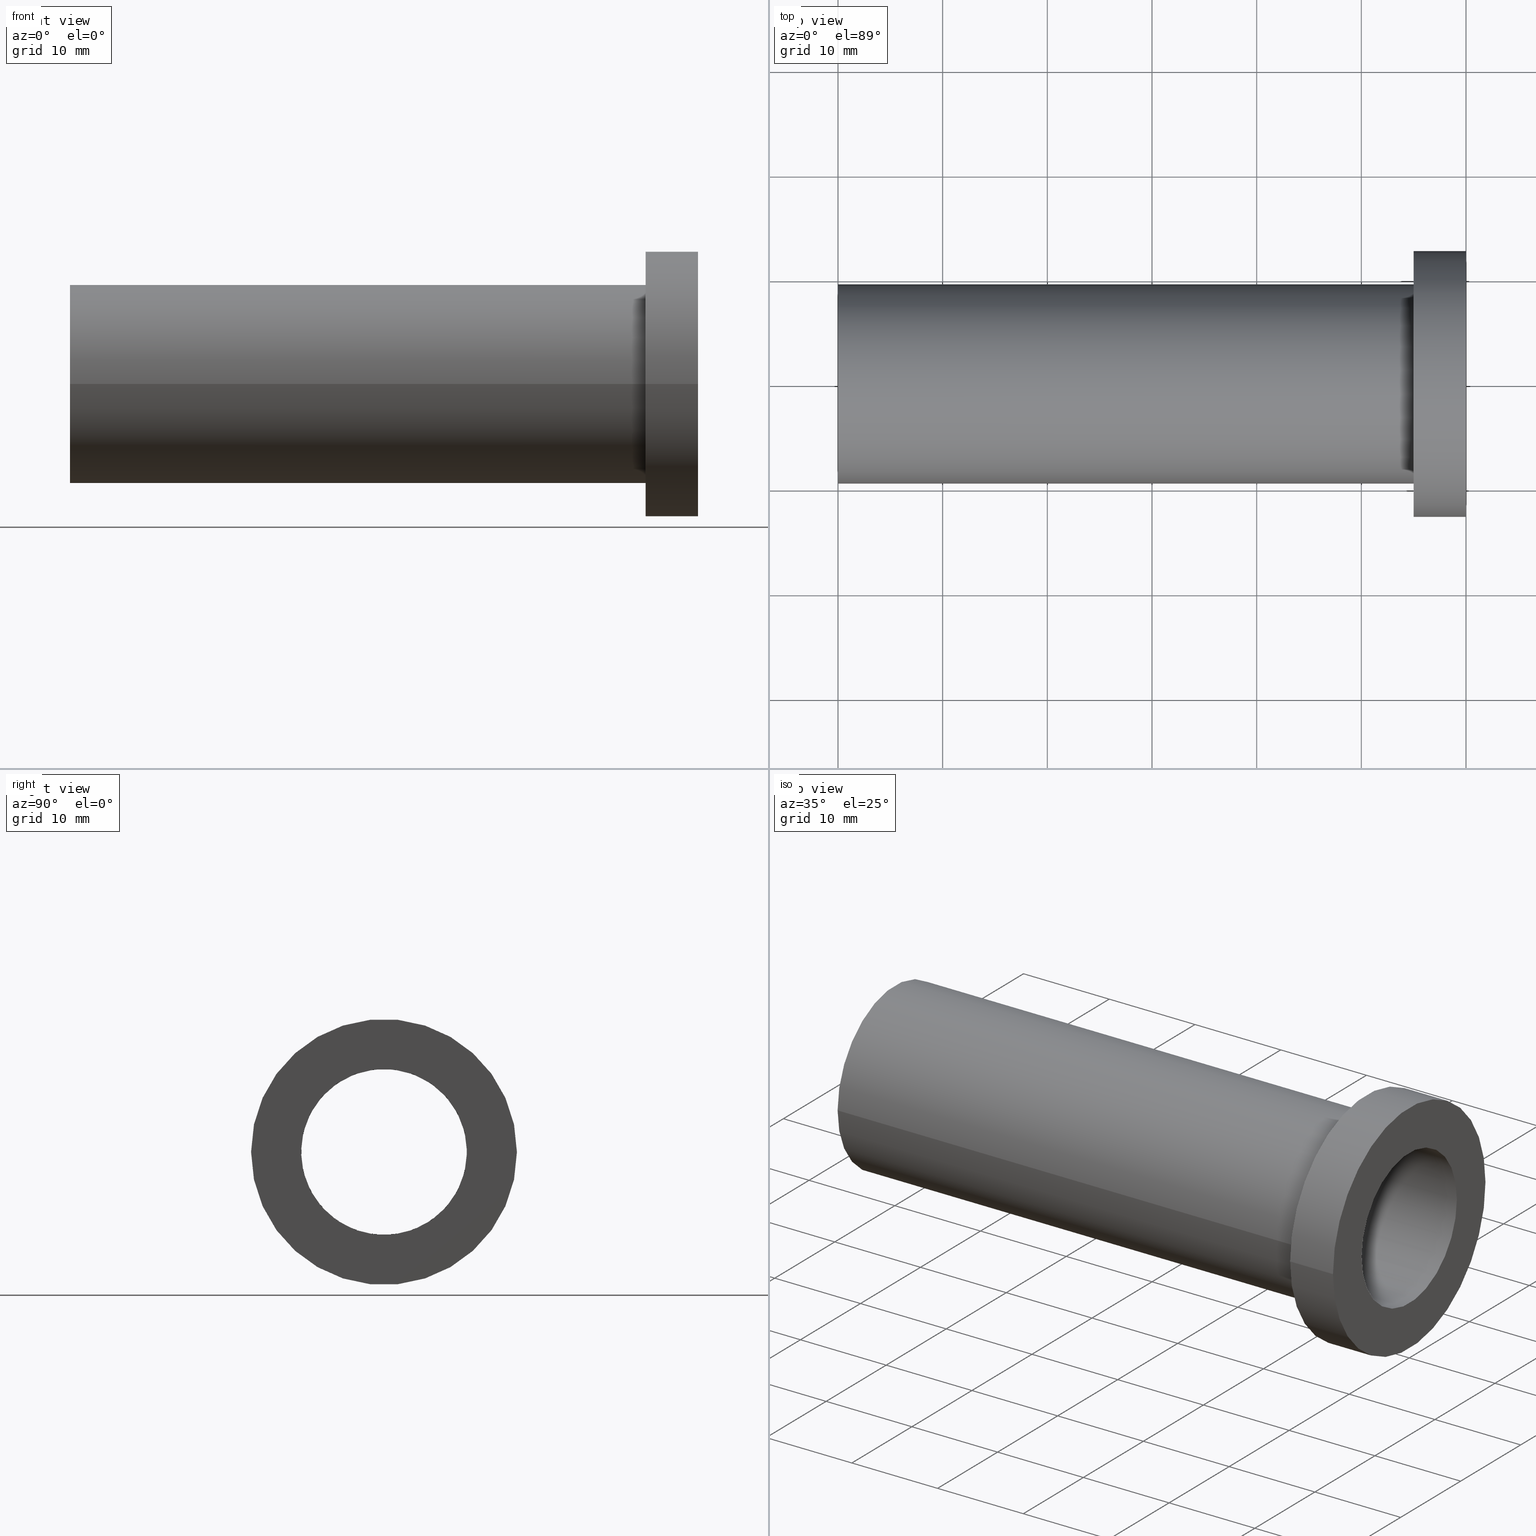
[diagram: canonical four-view strip — front | top / right | iso, engineering-drawing reading convention]
A machine part, canonical four-view strip (front | top / right | iso — engineering-drawing reading convention). The complete STEP part file that produces these views, byte-faithful:
ISO-10303-21;
HEADER;
/* Generated by software containing ST-Developer
 * from STEP Tools, Inc. (www.steptools.com) 
 */

FILE_DESCRIPTION(
/* description */ (''),
/* implementation_level */ '2;1');

FILE_NAME(
/* name */ 
'Z:\\\X2\C5F0AD6CC18C\X0\\\DRAWING_3D\\1. \X2\C778BCA4D130\X0\\\4. LAY
-OUT\\ACCESSORY&OTEHERS\\POWER MILLING CHUCK\\CK-COLLET\\INCH\\CK19.05
\\CK19.05-15.875\\CK19.05-15.875.stp',
/* time_stamp */ '2023-06-13T11:20:33+09:00',
/* author */ ('eos'),
/* organization */ (''),
/* preprocessor_version */ 'ST-DEVELOPER v18.1',
/* originating_system */ 'Autodesk Inventor 2022',
/* authorisation */ '');

FILE_SCHEMA (('AUTOMOTIVE_DESIGN { 1 0 10303 214 3 1 1 }'));
ENDSEC;

DATA;
#10=MECHANICAL_DESIGN_GEOMETRIC_PRESENTATION_REPRESENTATION('',(#13),#269);
#11=SHAPE_REPRESENTATION_RELATIONSHIP('SRR','None',#276,#12);
#12=ADVANCED_BREP_SHAPE_REPRESENTATION('',(#14),#268);
#13=STYLED_ITEM('',(#285),#14);
#14=MANIFOLD_SOLID_BREP('\X2\C194B9ACB4DC\X0\1',#140);
#15=FACE_BOUND('',#37,.T.);
#16=FACE_BOUND('',#40,.T.);
#17=FACE_BOUND('',#43,.T.);
#18=FACE_BOUND('',#46,.T.);
#19=FACE_BOUND('',#48,.T.);
#20=PLANE('',#166);
#21=PLANE('',#171);
#22=PLANE('',#175);
#23=PLANE('',#179);
#24=PLANE('',#180);
#25=FACE_OUTER_BOUND('',#35,.T.);
#26=FACE_OUTER_BOUND('',#36,.T.);
#27=FACE_OUTER_BOUND('',#38,.T.);
#28=FACE_OUTER_BOUND('',#39,.T.);
#29=FACE_OUTER_BOUND('',#41,.T.);
#30=FACE_OUTER_BOUND('',#42,.T.);
#31=FACE_OUTER_BOUND('',#44,.T.);
#32=FACE_OUTER_BOUND('',#45,.T.);
#33=FACE_OUTER_BOUND('',#47,.T.);
#34=FACE_OUTER_BOUND('',#49,.T.);
#35=EDGE_LOOP('',(#95,#96,#97,#98));
#36=EDGE_LOOP('',(#99));
#37=EDGE_LOOP('',(#100));
#38=EDGE_LOOP('',(#101,#102,#103,#104));
#39=EDGE_LOOP('',(#105));
#40=EDGE_LOOP('',(#106));
#41=EDGE_LOOP('',(#107,#108,#109,#110));
#42=EDGE_LOOP('',(#111));
#43=EDGE_LOOP('',(#112));
#44=EDGE_LOOP('',(#113,#114,#115,#116));
#45=EDGE_LOOP('',(#117));
#46=EDGE_LOOP('',(#118));
#47=EDGE_LOOP('',(#119));
#48=EDGE_LOOP('',(#120));
#49=EDGE_LOOP('',(#121,#122,#123,#124));
#50=LINE('',#235,#55);
#51=LINE('',#245,#56);
#52=LINE('',#251,#57);
#53=LINE('',#258,#58);
#54=LINE('',#265,#59);
#55=VECTOR('',#189,7.9585);
#56=VECTOR('',#202,12.7);
#57=VECTOR('',#209,7.9375);
#58=VECTOR('',#218,8.5);
#59=VECTOR('',#229,9.52500000000001);
#60=CIRCLE('',#164,7.9585);
#61=CIRCLE('',#165,7.9585);
#62=CIRCLE('',#167,12.7);
#63=CIRCLE('',#168,9.52500000000001);
#64=CIRCLE('',#170,12.7);
#65=CIRCLE('',#172,7.93750000000001);
#66=CIRCLE('',#174,7.93749999999999);
#67=CIRCLE('',#176,8.5);
#68=CIRCLE('',#178,8.5);
#69=CIRCLE('',#181,9.52500000000001);
#70=VERTEX_POINT('',#232);
#71=VERTEX_POINT('',#234);
#72=VERTEX_POINT('',#238);
#73=VERTEX_POINT('',#240);
#74=VERTEX_POINT('',#243);
#75=VERTEX_POINT('',#247);
#76=VERTEX_POINT('',#250);
#77=VERTEX_POINT('',#254);
#78=VERTEX_POINT('',#257);
#79=VERTEX_POINT('',#262);
#80=EDGE_CURVE('',#70,#70,#60,.T.);
#81=EDGE_CURVE('',#70,#71,#50,.T.);
#82=EDGE_CURVE('',#71,#71,#61,.T.);
#83=EDGE_CURVE('',#72,#72,#62,.T.);
#84=EDGE_CURVE('',#73,#73,#63,.T.);
#85=EDGE_CURVE('',#74,#74,#64,.T.);
#86=EDGE_CURVE('',#74,#72,#51,.T.);
#87=EDGE_CURVE('',#75,#75,#65,.T.);
#88=EDGE_CURVE('',#75,#76,#52,.T.);
#89=EDGE_CURVE('',#76,#76,#66,.T.);
#90=EDGE_CURVE('',#77,#77,#67,.T.);
#91=EDGE_CURVE('',#77,#78,#53,.T.);
#92=EDGE_CURVE('',#78,#78,#68,.T.);
#93=EDGE_CURVE('',#79,#79,#69,.T.);
#94=EDGE_CURVE('',#73,#79,#54,.T.);
#95=ORIENTED_EDGE('',*,*,#80,.F.);
#96=ORIENTED_EDGE('',*,*,#81,.T.);
#97=ORIENTED_EDGE('',*,*,#82,.F.);
#98=ORIENTED_EDGE('',*,*,#81,.F.);
#99=ORIENTED_EDGE('',*,*,#83,.F.);
#100=ORIENTED_EDGE('',*,*,#84,.T.);
#101=ORIENTED_EDGE('',*,*,#85,.F.);
#102=ORIENTED_EDGE('',*,*,#86,.T.);
#103=ORIENTED_EDGE('',*,*,#83,.T.);
#104=ORIENTED_EDGE('',*,*,#86,.F.);
#105=ORIENTED_EDGE('',*,*,#85,.T.);
#106=ORIENTED_EDGE('',*,*,#87,.F.);
#107=ORIENTED_EDGE('',*,*,#87,.T.);
#108=ORIENTED_EDGE('',*,*,#88,.T.);
#109=ORIENTED_EDGE('',*,*,#89,.F.);
#110=ORIENTED_EDGE('',*,*,#88,.F.);
#111=ORIENTED_EDGE('',*,*,#90,.F.);
#112=ORIENTED_EDGE('',*,*,#89,.T.);
#113=ORIENTED_EDGE('',*,*,#90,.T.);
#114=ORIENTED_EDGE('',*,*,#91,.T.);
#115=ORIENTED_EDGE('',*,*,#92,.F.);
#116=ORIENTED_EDGE('',*,*,#91,.F.);
#117=ORIENTED_EDGE('',*,*,#92,.T.);
#118=ORIENTED_EDGE('',*,*,#82,.T.);
#119=ORIENTED_EDGE('',*,*,#93,.F.);
#120=ORIENTED_EDGE('',*,*,#80,.T.);
#121=ORIENTED_EDGE('',*,*,#84,.F.);
#122=ORIENTED_EDGE('',*,*,#94,.T.);
#123=ORIENTED_EDGE('',*,*,#93,.T.);
#124=ORIENTED_EDGE('',*,*,#94,.F.);
#125=CYLINDRICAL_SURFACE('',#163,7.9585);
#126=CYLINDRICAL_SURFACE('',#169,12.7);
#127=CYLINDRICAL_SURFACE('',#173,7.9375);
#128=CYLINDRICAL_SURFACE('',#177,8.5);
#129=CYLINDRICAL_SURFACE('',#182,9.52500000000001);
#130=ADVANCED_FACE('',(#25),#125,.F.);
#131=ADVANCED_FACE('',(#26,#15),#20,.T.);
#132=ADVANCED_FACE('',(#27),#126,.T.);
#133=ADVANCED_FACE('',(#28,#16),#21,.T.);
#134=ADVANCED_FACE('',(#29),#127,.F.);
#135=ADVANCED_FACE('',(#30,#17),#22,.T.);
#136=ADVANCED_FACE('',(#31),#128,.F.);
#137=ADVANCED_FACE('',(#32,#18),#23,.T.);
#138=ADVANCED_FACE('',(#33,#19),#24,.T.);
#139=ADVANCED_FACE('',(#34),#129,.T.);
#140=CLOSED_SHELL('',(#130,#131,#132,#133,#134,#135,#136,#137,#138,#139));
#141=DERIVED_UNIT_ELEMENT(#144,1.);
#142=DERIVED_UNIT_ELEMENT(#271,-3.);
#143=DIMENSIONAL_EXPONENTS(1.,0.,0.,0.,0.,0.,0.);
#144=(
CONVERSION_BASED_UNIT('gram',#146)
MASS_UNIT()
NAMED_UNIT(#143)
);
#145=(
MASS_UNIT()
NAMED_UNIT(*)
SI_UNIT(.KILO.,.GRAM.)
);
#146=MASS_MEASURE_WITH_UNIT(MASS_MEASURE(0.001),#145);
#147=DERIVED_UNIT((#141,#142));
#148=MEASURE_REPRESENTATION_ITEM('density measure',
POSITIVE_RATIO_MEASURE(1.),#147);
#149=PROPERTY_DEFINITION_REPRESENTATION(#154,#151);
#150=PROPERTY_DEFINITION_REPRESENTATION(#155,#152);
#151=REPRESENTATION('material name',(#153),#268);
#152=REPRESENTATION('density',(#148),#268);
#153=DESCRIPTIVE_REPRESENTATION_ITEM('\X2\C77CBC18\X0\','\X2\C77CBC18\X0\');
#154=PROPERTY_DEFINITION('material property','material name',#278);
#155=PROPERTY_DEFINITION('material property','density of part',#278);
#156=DATE_TIME_ROLE('creation_date');
#157=APPLIED_DATE_AND_TIME_ASSIGNMENT(#158,#156,(#278));
#158=DATE_AND_TIME(#159,#160);
#159=CALENDAR_DATE(2023,13,6);
#160=LOCAL_TIME(0,0,0.,#161);
#161=COORDINATED_UNIVERSAL_TIME_OFFSET(0,0,.BEHIND.);
#162=AXIS2_PLACEMENT_3D('placement',#230,#183,#184);
#163=AXIS2_PLACEMENT_3D('',#231,#185,#186);
#164=AXIS2_PLACEMENT_3D('',#233,#187,#188);
#165=AXIS2_PLACEMENT_3D('',#236,#190,#191);
#166=AXIS2_PLACEMENT_3D('',#237,#192,#193);
#167=AXIS2_PLACEMENT_3D('',#239,#194,#195);
#168=AXIS2_PLACEMENT_3D('',#241,#196,#197);
#169=AXIS2_PLACEMENT_3D('',#242,#198,#199);
#170=AXIS2_PLACEMENT_3D('',#244,#200,#201);
#171=AXIS2_PLACEMENT_3D('',#246,#203,#204);
#172=AXIS2_PLACEMENT_3D('',#248,#205,#206);
#173=AXIS2_PLACEMENT_3D('',#249,#207,#208);
#174=AXIS2_PLACEMENT_3D('',#252,#210,#211);
#175=AXIS2_PLACEMENT_3D('',#253,#212,#213);
#176=AXIS2_PLACEMENT_3D('',#255,#214,#215);
#177=AXIS2_PLACEMENT_3D('',#256,#216,#217);
#178=AXIS2_PLACEMENT_3D('',#259,#219,#220);
#179=AXIS2_PLACEMENT_3D('',#260,#221,#222);
#180=AXIS2_PLACEMENT_3D('',#261,#223,#224);
#181=AXIS2_PLACEMENT_3D('',#263,#225,#226);
#182=AXIS2_PLACEMENT_3D('',#264,#227,#228);
#183=DIRECTION('axis',(0.,0.,1.));
#184=DIRECTION('refdir',(1.,0.,0.));
#185=DIRECTION('center_axis',(-1.,0.,0.));
#186=DIRECTION('ref_axis',(0.,0.,1.));
#187=DIRECTION('center_axis',(1.,0.,0.));
#188=DIRECTION('ref_axis',(0.,0.,1.));
#189=DIRECTION('',(1.,0.,0.));
#190=DIRECTION('center_axis',(-1.,0.,0.));
#191=DIRECTION('ref_axis',(0.,0.,1.));
#192=DIRECTION('center_axis',(-1.,0.,0.));
#193=DIRECTION('ref_axis',(0.,0.,1.));
#194=DIRECTION('center_axis',(1.,0.,0.));
#195=DIRECTION('ref_axis',(0.,0.,-1.));
#196=DIRECTION('center_axis',(1.,0.,0.));
#197=DIRECTION('ref_axis',(0.,0.,-1.));
#198=DIRECTION('center_axis',(1.,0.,0.));
#199=DIRECTION('ref_axis',(0.,1.,0.));
#200=DIRECTION('center_axis',(1.,0.,0.));
#201=DIRECTION('ref_axis',(0.,0.,-1.));
#202=DIRECTION('',(-1.,0.,0.));
#203=DIRECTION('center_axis',(1.,0.,0.));
#204=DIRECTION('ref_axis',(0.,0.,-1.));
#205=DIRECTION('center_axis',(1.,0.,0.));
#206=DIRECTION('ref_axis',(0.,0.,-1.));
#207=DIRECTION('center_axis',(1.,0.,0.));
#208=DIRECTION('ref_axis',(0.,1.,0.));
#209=DIRECTION('',(-1.,0.,0.));
#210=DIRECTION('center_axis',(1.,0.,0.));
#211=DIRECTION('ref_axis',(0.,0.,-1.));
#212=DIRECTION('center_axis',(-1.,0.,0.));
#213=DIRECTION('ref_axis',(0.,0.,1.));
#214=DIRECTION('center_axis',(1.,0.,0.));
#215=DIRECTION('ref_axis',(0.,0.,-1.));
#216=DIRECTION('center_axis',(1.,0.,0.));
#217=DIRECTION('ref_axis',(0.,1.,0.));
#218=DIRECTION('',(-1.,0.,0.));
#219=DIRECTION('center_axis',(1.,0.,0.));
#220=DIRECTION('ref_axis',(0.,0.,-1.));
#221=DIRECTION('center_axis',(1.,0.,0.));
#222=DIRECTION('ref_axis',(0.,0.,-1.));
#223=DIRECTION('center_axis',(-1.,0.,0.));
#224=DIRECTION('ref_axis',(0.,0.,1.));
#225=DIRECTION('center_axis',(1.,0.,0.));
#226=DIRECTION('ref_axis',(0.,0.,-1.));
#227=DIRECTION('center_axis',(1.,0.,0.));
#228=DIRECTION('ref_axis',(0.,1.,0.));
#229=DIRECTION('',(-1.,0.,0.));
#230=CARTESIAN_POINT('',(0.,0.,0.));
#231=CARTESIAN_POINT('Origin',(-50.5,0.,0.));
#232=CARTESIAN_POINT('',(-60.,-9.74635155101421E-16,-7.9585));
#233=CARTESIAN_POINT('Origin',(-60.,0.,0.));
#234=CARTESIAN_POINT('',(-42.,-9.74635155101421E-16,-7.9585));
#235=CARTESIAN_POINT('',(-50.5,-9.74635155101421E-16,-7.9585));
#236=CARTESIAN_POINT('Origin',(-42.,0.,0.));
#237=CARTESIAN_POINT('Origin',(-5.,12.7,0.));
#238=CARTESIAN_POINT('',(-5.,-12.7,-1.55530143491714E-15));
#239=CARTESIAN_POINT('Origin',(-5.,0.,0.));
#240=CARTESIAN_POINT('',(-5.,-9.52500000000001,-1.16647607618786E-15));
#241=CARTESIAN_POINT('Origin',(-5.,0.,0.));
#242=CARTESIAN_POINT('Origin',(-2.5,0.,0.));
#243=CARTESIAN_POINT('',(8.88178419700125E-15,-12.7,-1.55530143491714E-15));
#244=CARTESIAN_POINT('Origin',(8.88178419700125E-15,0.,0.));
#245=CARTESIAN_POINT('',(-2.5,-12.7,-1.55530143491714E-15));
#246=CARTESIAN_POINT('Origin',(6.66133814775094E-15,7.93750000000001,0.));
#247=CARTESIAN_POINT('',(6.66133814775094E-15,-7.9375,-9.72063396823212E-16));
#248=CARTESIAN_POINT('Origin',(8.88178419700125E-15,0.,0.));
#249=CARTESIAN_POINT('Origin',(-18.5,0.,0.));
#250=CARTESIAN_POINT('',(-37.,-7.9375,-9.72063396823212E-16));
#251=CARTESIAN_POINT('',(-18.5,-7.9375,-9.72063396823212E-16));
#252=CARTESIAN_POINT('Origin',(-37.,0.,0.));
#253=CARTESIAN_POINT('Origin',(-37.,8.5,0.));
#254=CARTESIAN_POINT('',(-37.,-8.5,-1.04094977927525E-15));
#255=CARTESIAN_POINT('Origin',(-37.,0.,0.));
#256=CARTESIAN_POINT('Origin',(-39.5,0.,0.));
#257=CARTESIAN_POINT('',(-42.,-8.5,-1.04094977927525E-15));
#258=CARTESIAN_POINT('',(-39.5,-8.5,-1.04094977927525E-15));
#259=CARTESIAN_POINT('Origin',(-42.,0.,0.));
#260=CARTESIAN_POINT('Origin',(-42.,1.85076546254768E-14,0.));
#261=CARTESIAN_POINT('Origin',(-60.,9.52500000000001,0.));
#262=CARTESIAN_POINT('',(-60.,-9.52500000000001,-1.16647607618786E-15));
#263=CARTESIAN_POINT('Origin',(-60.,0.,0.));
#264=CARTESIAN_POINT('Origin',(-32.5,0.,0.));
#265=CARTESIAN_POINT('',(-32.5,-9.52500000000001,-1.16647607618786E-15));
#266=UNCERTAINTY_MEASURE_WITH_UNIT(LENGTH_MEASURE(0.01),#270,
'DISTANCE_ACCURACY_VALUE',
'Maximum model space distance between geometric entities at asserted c
onnectivities');
#267=UNCERTAINTY_MEASURE_WITH_UNIT(LENGTH_MEASURE(0.01),#270,
'DISTANCE_ACCURACY_VALUE',
'Maximum model space distance between geometric entities at asserted c
onnectivities');
#268=(
GEOMETRIC_REPRESENTATION_CONTEXT(3)
GLOBAL_UNCERTAINTY_ASSIGNED_CONTEXT((#266))
GLOBAL_UNIT_ASSIGNED_CONTEXT((#270,#272,#273))
REPRESENTATION_CONTEXT('','3D')
);
#269=(
GEOMETRIC_REPRESENTATION_CONTEXT(3)
GLOBAL_UNCERTAINTY_ASSIGNED_CONTEXT((#267))
GLOBAL_UNIT_ASSIGNED_CONTEXT((#270,#272,#273))
REPRESENTATION_CONTEXT('','3D')
);
#270=(
LENGTH_UNIT()
NAMED_UNIT(*)
SI_UNIT(.MILLI.,.METRE.)
);
#271=(
LENGTH_UNIT()
NAMED_UNIT(*)
SI_UNIT(.CENTI.,.METRE.)
);
#272=(
NAMED_UNIT(*)
PLANE_ANGLE_UNIT()
SI_UNIT($,.RADIAN.)
);
#273=(
NAMED_UNIT(*)
SI_UNIT($,.STERADIAN.)
SOLID_ANGLE_UNIT()
);
#274=SHAPE_DEFINITION_REPRESENTATION(#275,#276);
#275=PRODUCT_DEFINITION_SHAPE('',$,#278);
#276=SHAPE_REPRESENTATION('',(#162),#268);
#277=PRODUCT_DEFINITION_CONTEXT('part definition',#282,'design');
#278=PRODUCT_DEFINITION('LO-CK19.05-6','LO-CK19.05-15.875',#279,#277);
#279=PRODUCT_DEFINITION_FORMATION('',$,#284);
#280=PRODUCT_RELATED_PRODUCT_CATEGORY('LO-CK19.05-15.875',
'LO-CK19.05-15.875',(#284));
#281=APPLICATION_PROTOCOL_DEFINITION('international standard',
'automotive_design',2009,#282);
#282=APPLICATION_CONTEXT(
'Core Data for Automotive Mechanical Design Process');
#283=PRODUCT_CONTEXT('part definition',#282,'mechanical');
#284=PRODUCT('LO-CK19.05-6','LO-CK19.05-15.875',$,(#283));
#285=PRESENTATION_STYLE_ASSIGNMENT((#286));
#286=SURFACE_STYLE_USAGE(.BOTH.,#289);
#287=SURFACE_STYLE_RENDERING_WITH_PROPERTIES($,#293,(#288));
#288=SURFACE_STYLE_TRANSPARENT(0.339999973773956);
#289=SURFACE_SIDE_STYLE('',(#290,#287));
#290=SURFACE_STYLE_FILL_AREA(#291);
#291=FILL_AREA_STYLE('',(#292));
#292=FILL_AREA_STYLE_COLOUR('',#293);
#293=COLOUR_RGB('',0.925490196078431,0.945098039215686,0.937254901960784);
ENDSEC;
END-ISO-10303-21;
